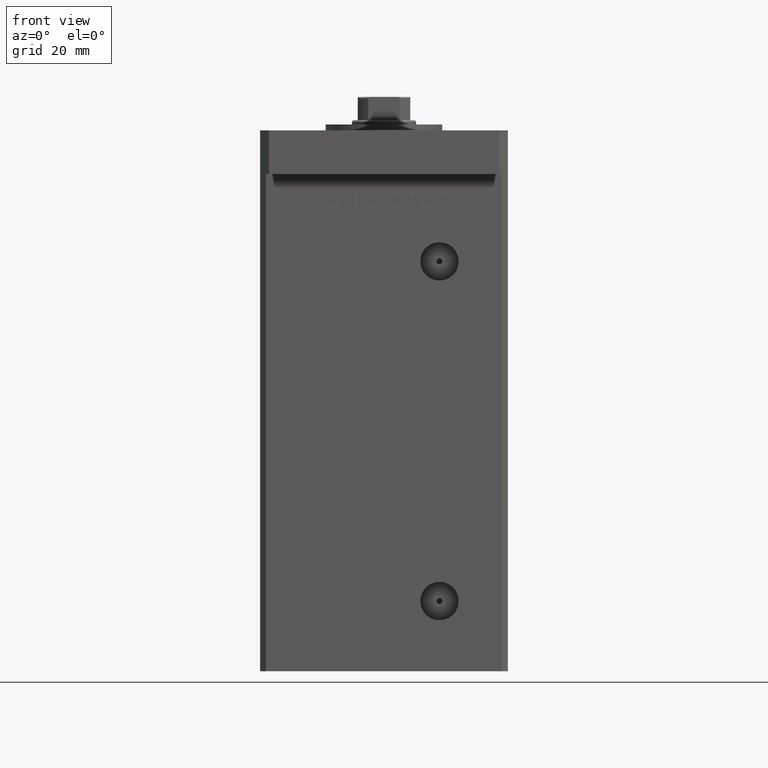
[diagram: clean part render]
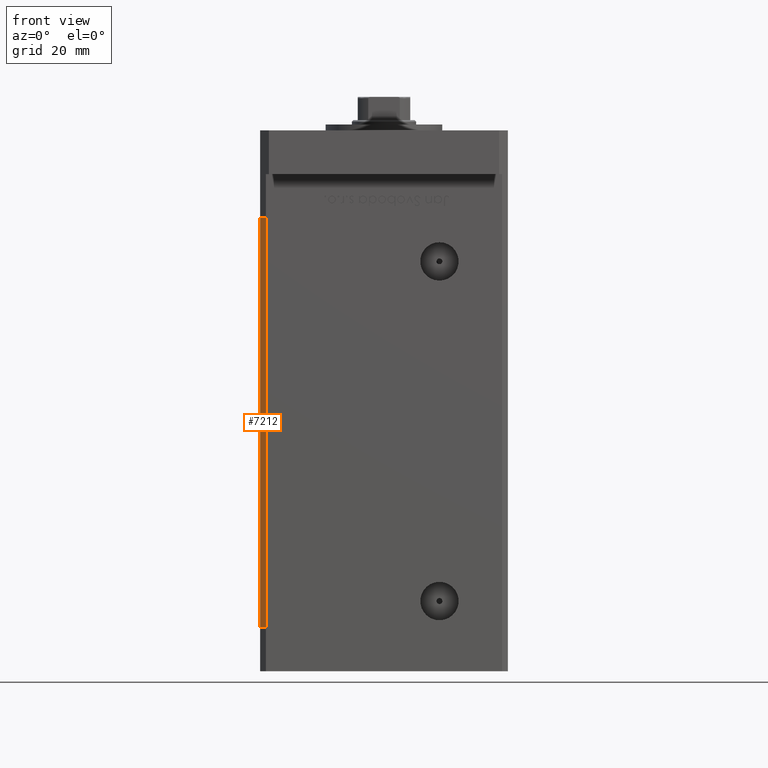
[diagram: same view with one face highlighted and labeled with its STEP entity id]
A machine part, front view. The second image highlights one B-rep face of the part: STEP entity #7212.
In plain terms, the highlighted planar face has unit normal (0.7071, 0.7071, 0).
Its self-contained STEP definition (entity closure, byte-faithful):
#126 = LINE ( 'NONE', #33215, #1617 ) ;
#678 = CARTESIAN_POINT ( 'NONE',  ( -42.49999999999998579, -35.50000000000000711, 140.5000000000000000 ) ) ;
#1617 = VECTOR ( 'NONE', #25043, 1000.000000000000114 ) ;
#5606 = PLANE ( 'NONE',  #25399 ) ;
#6213 = DIRECTION ( 'NONE',  ( 0.7071067811865474617, -0.7071067811865474617, 0.000000000000000000 ) ) ;
#7212 = ADVANCED_FACE ( 'NONE', ( #52161 ), #5606, .F. ) ;
#9506 = VERTEX_POINT ( 'NONE', #15339 ) ;
#13745 = CARTESIAN_POINT ( 'NONE',  ( -40.49999999999998579, -37.50000000000000711, 140.5000000000000000 ) ) ;
#15339 = CARTESIAN_POINT ( 'NONE',  ( -40.49999999999998579, -37.50000000000000711, 140.5000000000000000 ) ) ;
#15399 = CARTESIAN_POINT ( 'NONE',  ( -42.49999999999998579, -35.50000000000000711, 0.000000000000000000 ) ) ;
#15528 = CARTESIAN_POINT ( 'NONE',  ( -42.49999999999998579, -35.50000000000000711, 140.5000000000000000 ) ) ;
#16429 = ORIENTED_EDGE ( 'NONE', *, *, #34383, .T. ) ;
#17195 = DIRECTION ( 'NONE',  ( -0.000000000000000000, -0.000000000000000000, -1.000000000000000000 ) ) ;
#19179 = VERTEX_POINT ( 'NONE', #39363 ) ;
#19695 = ORIENTED_EDGE ( 'NONE', *, *, #46837, .F. ) ;
#21269 = LINE ( 'NONE', #678, #43763 ) ;
#25043 = DIRECTION ( 'NONE',  ( 0.7071067811865474617, -0.7071067811865474617, 0.000000000000000000 ) ) ;
#25399 = AXIS2_PLACEMENT_3D ( 'NONE', #15528, #31815, #26199 ) ;
#25566 = CARTESIAN_POINT ( 'NONE',  ( -40.49999999999998579, -37.50000000000000711, 0.000000000000000000 ) ) ;
#26199 = DIRECTION ( 'NONE',  ( -0.7071067811865474617, 0.7071067811865474617, 0.000000000000000000 ) ) ;
#27095 = ORIENTED_EDGE ( 'NONE', *, *, #40271, .F. ) ;
#30829 = LINE ( 'NONE', #13745, #53639 ) ;
#31312 = VECTOR ( 'NONE', #6213, 1000.000000000000114 ) ;
#31815 = DIRECTION ( 'NONE',  ( 0.7071067811865475727, 0.7071067811865475727, -0.000000000000000000 ) ) ;
#33215 = CARTESIAN_POINT ( 'NONE',  ( -42.49999999999998579, -35.50000000000000711, 140.5000000000000000 ) ) ;
#34383 = EDGE_CURVE ( 'NONE', #19179, #41047, #21269, .T. ) ;
#36647 = ORIENTED_EDGE ( 'NONE', *, *, #52914, .T. ) ;
#38775 = CARTESIAN_POINT ( 'NONE',  ( -42.49999999999998579, -35.50000000000000711, 0.000000000000000000 ) ) ;
#39363 = CARTESIAN_POINT ( 'NONE',  ( -42.49999999999998579, -35.50000000000000711, 140.5000000000000000 ) ) ;
#40271 = EDGE_CURVE ( 'NONE', #19179, #9506, #126, .T. ) ;
#40771 = EDGE_LOOP ( 'NONE', ( #36647, #19695, #27095, #16429 ) ) ;
#41047 = VERTEX_POINT ( 'NONE', #15399 ) ;
#43640 = LINE ( 'NONE', #38775, #31312 ) ;
#43763 = VECTOR ( 'NONE', #17195, 1000.000000000000000 ) ;
#46575 = DIRECTION ( 'NONE',  ( -0.000000000000000000, -0.000000000000000000, -1.000000000000000000 ) ) ;
#46837 = EDGE_CURVE ( 'NONE', #9506, #49025, #30829, .T. ) ;
#49025 = VERTEX_POINT ( 'NONE', #25566 ) ;
#52161 = FACE_OUTER_BOUND ( 'NONE', #40771, .T. ) ;
#52914 = EDGE_CURVE ( 'NONE', #41047, #49025, #43640, .T. ) ;
#53639 = VECTOR ( 'NONE', #46575, 1000.000000000000000 ) ;